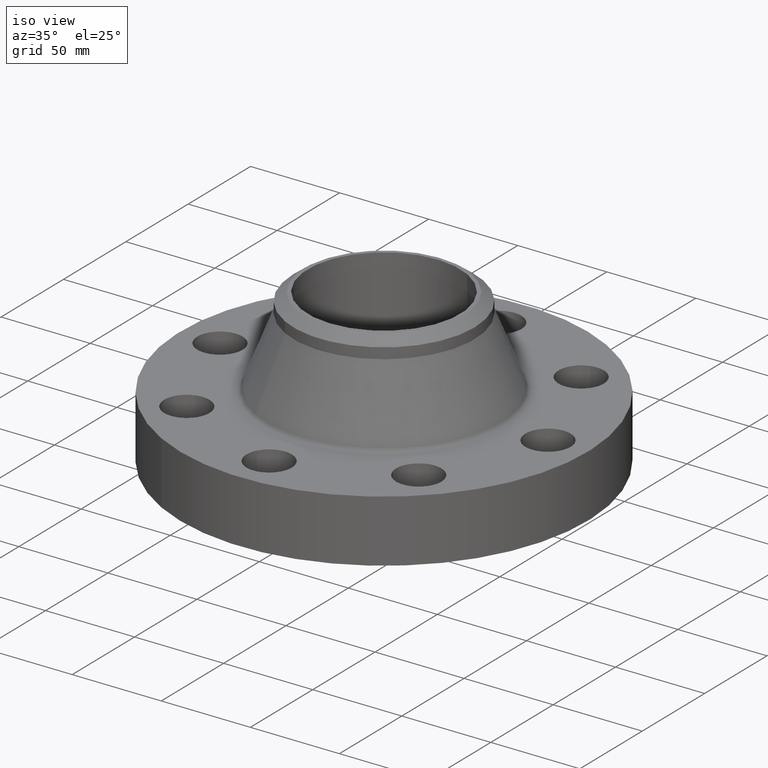
[diagram: clean part render]
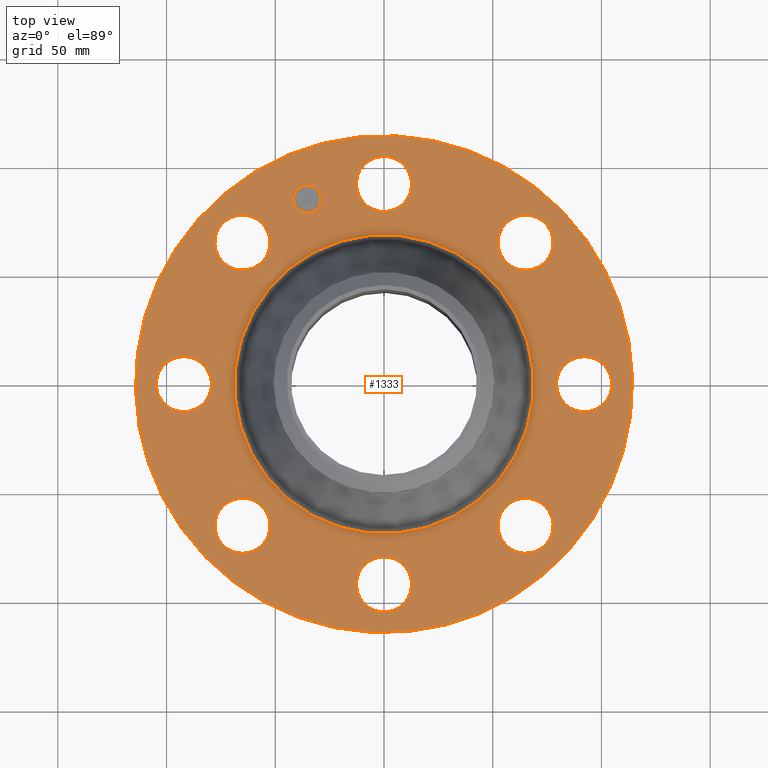
[diagram: tour spotlight — one face highlighted and labeled with its STEP entity id]
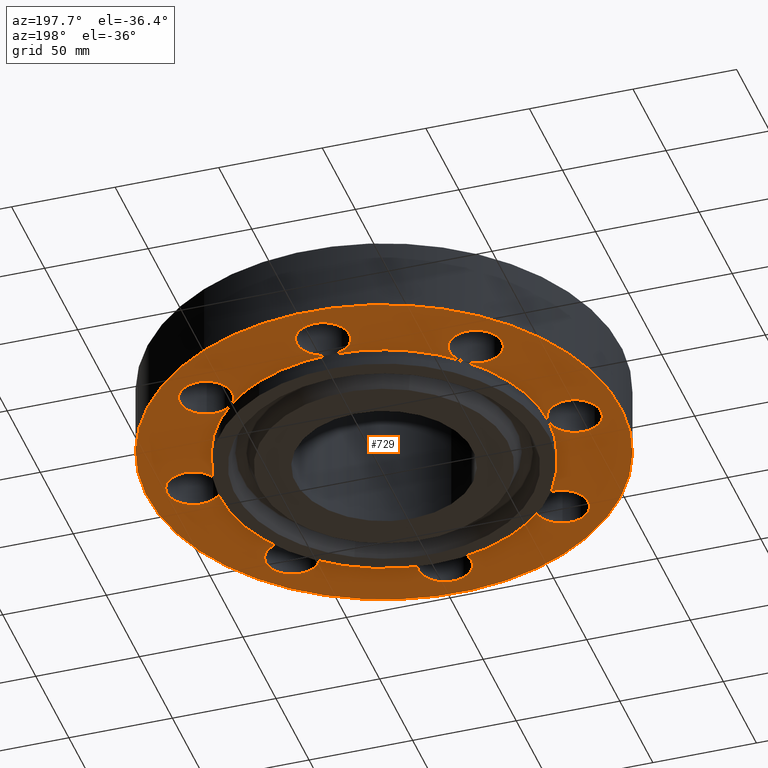
[diagram: tour spotlight — one face highlighted and labeled with its STEP entity id]
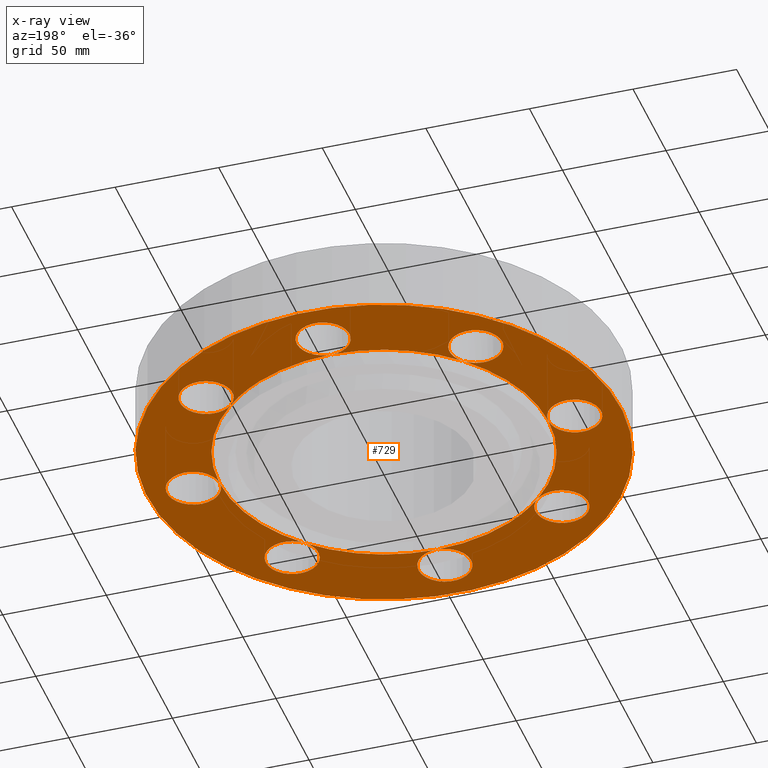
[diagram: x-ray of the same camera — body ghosted, this tour face saturated]
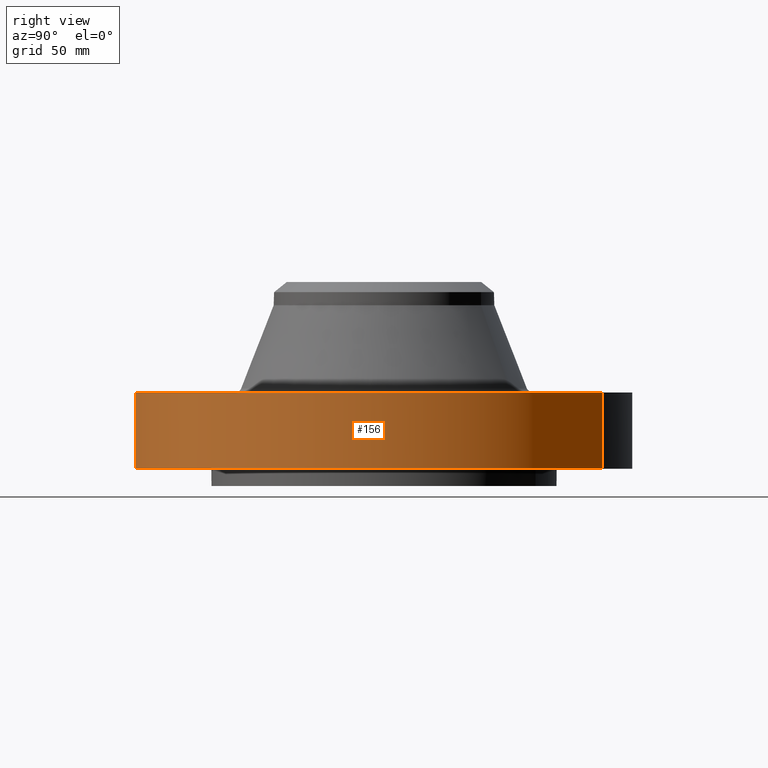
[diagram: tour spotlight — one face highlighted and labeled with its STEP entity id]
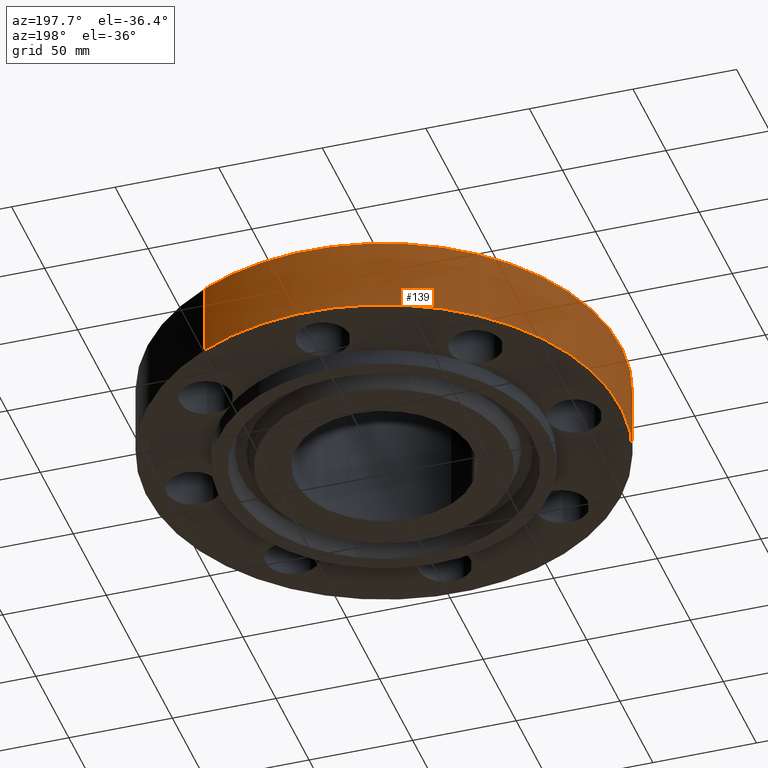
[diagram: tour spotlight — one face highlighted and labeled with its STEP entity id]
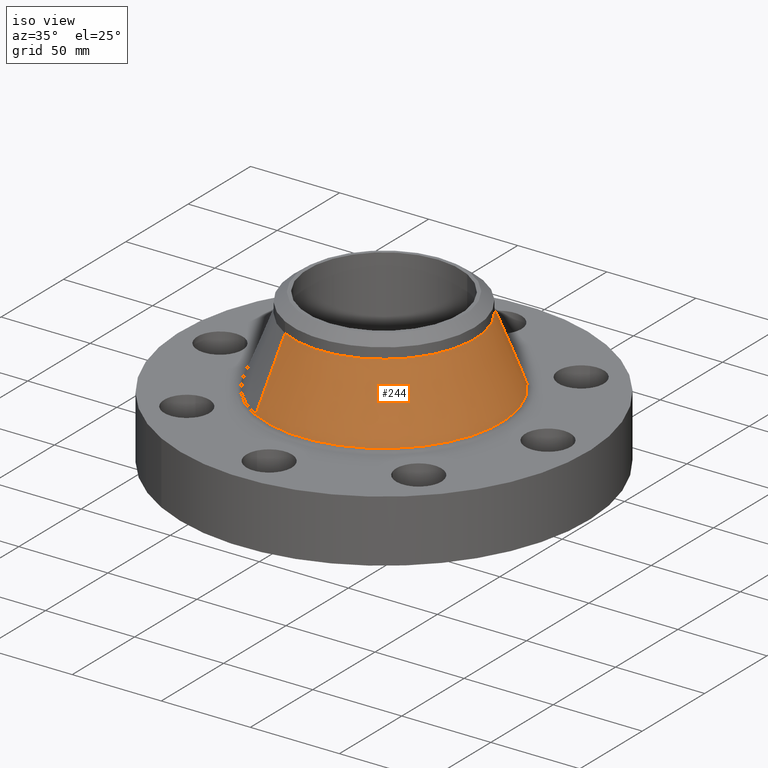
[diagram: tour spotlight — one face highlighted and labeled with its STEP entity id]
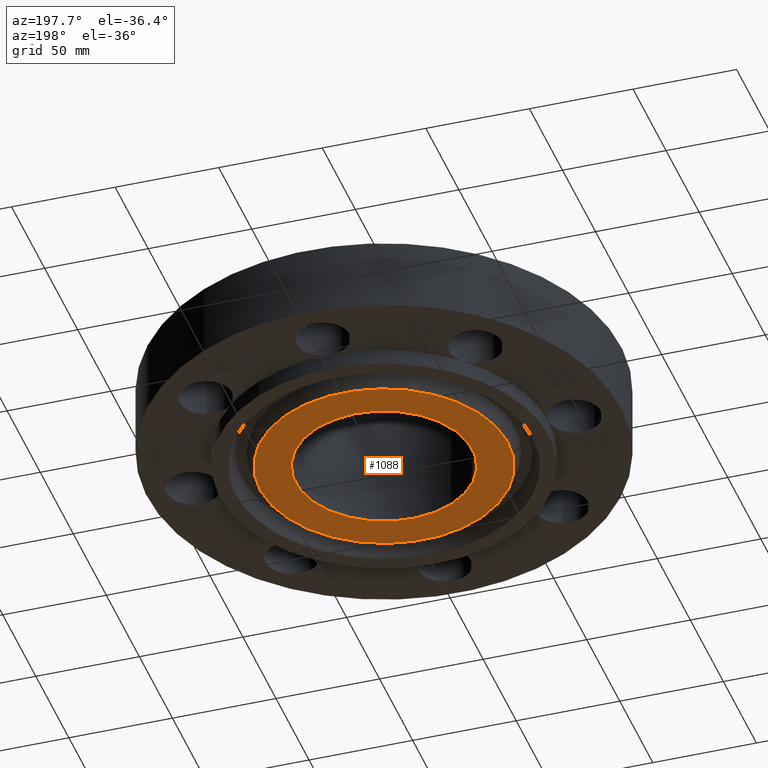
[diagram: tour spotlight — one face highlighted and labeled with its STEP entity id]
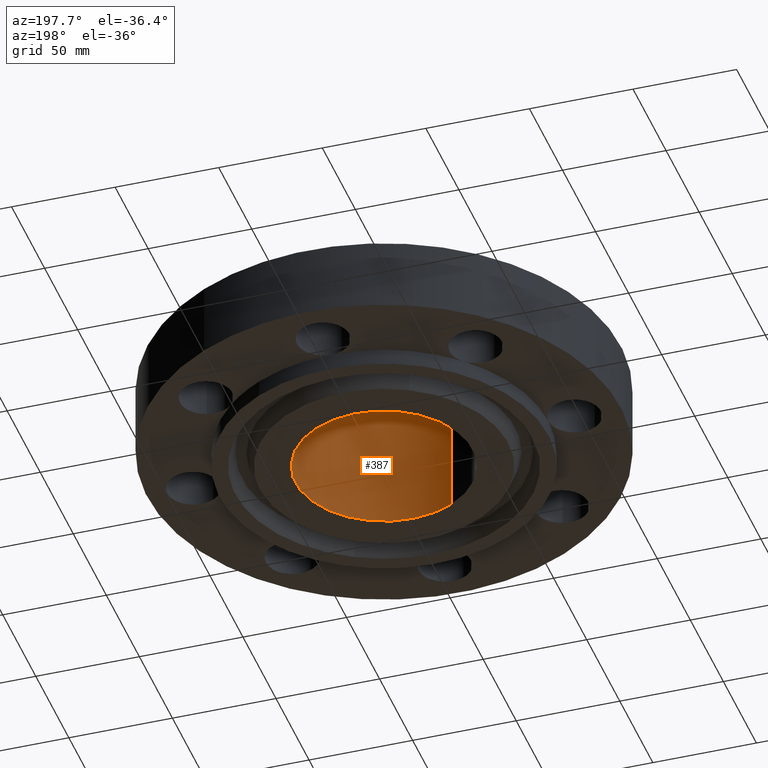
[diagram: tour spotlight — one face highlighted and labeled with its STEP entity id]
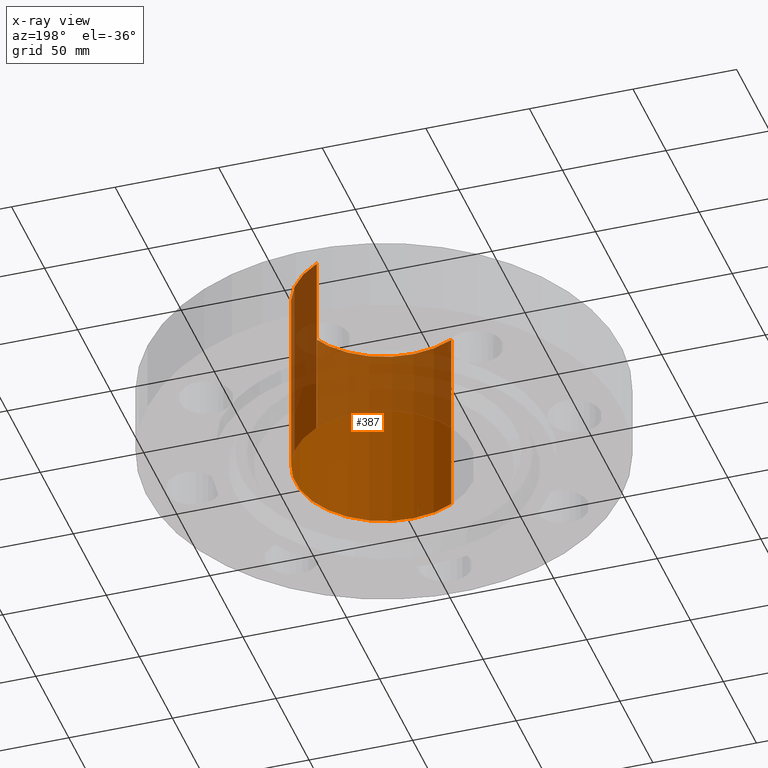
[diagram: x-ray of the same camera — body ghosted, this tour face saturated]
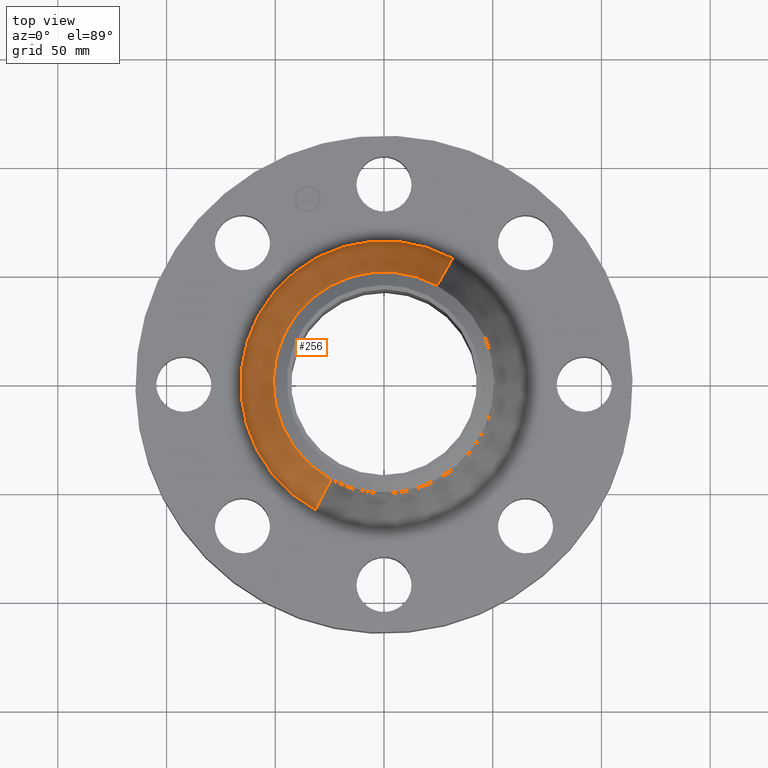
[diagram: tour spotlight — one face highlighted and labeled with its STEP entity id]
A machine part: a face-by-face anatomy tour. The part has 429 B-rep faces; the first image is the clean iso view, then the 8 largest visible faces are spotlighted one at a time (largest first), each with its STEP entity span.

Face 1 — top view, entity #1333. In plain terms, the highlighted planar face has unit normal (0, 0, -1).
Definition (entity closure, byte-faithful):
#65=AXIS2_PLACEMENT_3D('Circle Axis2P3D',#63,#64,$) ;
#89=AXIS2_PLACEMENT_3D('Circle Axis2P3D',#87,#88,$) ;
#123=AXIS2_PLACEMENT_3D('Circle Axis2P3D',#121,#122,$) ;
#147=AXIS2_PLACEMENT_3D('Circle Axis2P3D',#145,#146,$) ;
#164=AXIS2_PLACEMENT_3D('Circle Axis2P3D',#162,#163,$) ;
#199=AXIS2_PLACEMENT_3D('Circle Axis2P3D',#197,#198,$) ;
#751=AXIS2_PLACEMENT_3D('Circle Axis2P3D',#749,#750,$) ;
#763=AXIS2_PLACEMENT_3D('Circle Axis2P3D',#761,#762,$) ;
#795=AXIS2_PLACEMENT_3D('Circle Axis2P3D',#793,#794,$) ;
#807=AXIS2_PLACEMENT_3D('Circle Axis2P3D',#805,#806,$) ;
#839=AXIS2_PLACEMENT_3D('Circle Axis2P3D',#837,#838,$) ;
#851=AXIS2_PLACEMENT_3D('Circle Axis2P3D',#849,#850,$) ;
#883=AXIS2_PLACEMENT_3D('Circle Axis2P3D',#881,#882,$) ;
#895=AXIS2_PLACEMENT_3D('Circle Axis2P3D',#893,#894,$) ;
#927=AXIS2_PLACEMENT_3D('Circle Axis2P3D',#925,#926,$) ;
#939=AXIS2_PLACEMENT_3D('Circle Axis2P3D',#937,#938,$) ;
#971=AXIS2_PLACEMENT_3D('Circle Axis2P3D',#969,#970,$) ;
#983=AXIS2_PLACEMENT_3D('Circle Axis2P3D',#981,#982,$) ;
#1015=AXIS2_PLACEMENT_3D('Circle Axis2P3D',#1013,#1014,$) ;
#1027=AXIS2_PLACEMENT_3D('Circle Axis2P3D',#1025,#1026,$) ;
#1273=AXIS2_PLACEMENT_3D('Plane Axis2P3D',#1270,#1271,#1272) ;
#1317=AXIS2_PLACEMENT_3D('Circle Axis2P3D',#1315,#1316,$) ;
#1326=AXIS2_PLACEMENT_3D('Circle Axis2P3D',#1324,#1325,$) ;
#46=CARTESIAN_POINT('Vertex',(-0.438791280947,3.86471276932,1.38000000001)) ;
#60=CARTESIAN_POINT('Vertex',(0.438791280947,3.38528723071,1.38000000001)) ;
#63=CARTESIAN_POINT('Axis2P3D Location',(0.,3.62500000001,1.38000000001)) ;
#87=CARTESIAN_POINT('Axis2P3D Location',(0.,3.62500000001,1.38000000001)) ;
#118=CARTESIAN_POINT('Vertex',(-2.15741492373,-3.94912152852,1.38000000001)) ;
#121=CARTESIAN_POINT('Axis2P3D Location',(0.,0.,1.38000000001)) ;
#125=CARTESIAN_POINT('Vertex',(2.15741492373,3.94912152852,1.38000000001)) ;
#145=CARTESIAN_POINT('Axis2P3D Location',(0.,0.,1.38000000001)) ;
#162=CARTESIAN_POINT('Axis2P3D Location',(0.,0.,1.38000000001)) ;
#166=CARTESIAN_POINT('Vertex',(1.29760486197,2.37524976747,1.38000000001)) ;
#168=CARTESIAN_POINT('Vertex',(-1.29760486197,-2.37524976747,1.38000000001)) ;
#197=CARTESIAN_POINT('Axis2P3D Location',(0.,0.,1.38000000001)) ;
#739=CARTESIAN_POINT('Vertex',(0.438791280947,-3.86471276932,1.38000000001)) ;
#746=CARTESIAN_POINT('Vertex',(-0.438791280947,-3.38528723071,1.38000000001)) ;
#749=CARTESIAN_POINT('Axis2P3D Location',(4.43934464693E-016,-3.62500000001,1.38000000001)) ;
#761=CARTESIAN_POINT('Axis2P3D Location',(4.43934464693E-016,-3.62500000001,1.38000000001)) ;
#783=CARTESIAN_POINT('Vertex',(-3.04303689681,2.42249231624,1.38000000001)) ;
#790=CARTESIAN_POINT('Vertex',(-2.08348726682,2.70403184738,1.38000000001)) ;
#793=CARTESIAN_POINT('Axis2P3D Location',(-2.56326208181,2.56326208181,1.38000000001)) ;
#805=CARTESIAN_POINT('Axis2P3D Location',(-2.56326208181,2.56326208181,1.38000000001)) ;
#827=CARTESIAN_POINT('Vertex',(3.04303689681,-2.42249231624,1.38000000001)) ;
#834=CARTESIAN_POINT('Vertex',(2.08348726682,-2.70403184738,1.38000000001)) ;
#837=CARTESIAN_POINT('Axis2P3D Location',(2.56326208181,-2.56326208181,1.38000000001)) ;
#849=CARTESIAN_POINT('Axis2P3D Location',(2.56326208181,-2.56326208181,1.38000000001)) ;
#871=CARTESIAN_POINT('Vertex',(2.42249231624,3.04303689681,1.38000000001)) ;
#878=CARTESIAN_POINT('Vertex',(2.70403184738,2.08348726682,1.38000000001)) ;
#881=CARTESIAN_POINT('Axis2P3D Location',(2.56326208181,2.56326208181,1.38000000001)) ;
#893=CARTESIAN_POINT('Axis2P3D Location',(2.56326208181,2.56326208181,1.38000000001)) ;
#915=CARTESIAN_POINT('Vertex',(-3.86471276932,-0.438791280947,1.38000000001)) ;
#922=CARTESIAN_POINT('Vertex',(-3.38528723071,0.438791280947,1.38000000001)) ;
#925=CARTESIAN_POINT('Axis2P3D Location',(-3.62500000001,-1.22538416614E-015,1.38000000001)) ;
#937=CARTESIAN_POINT('Axis2P3D Location',(-3.62500000001,-1.22538416614E-015,1.38000000001)) ;
#959=CARTESIAN_POINT('Vertex',(-2.42249231624,-3.04303689681,1.38000000001)) ;
#966=CARTESIAN_POINT('Vertex',(-2.70403184738,-2.08348726682,1.38000000001)) ;
#969=CARTESIAN_POINT('Axis2P3D Location',(-2.56326208181,-2.56326208181,1.38000000001)) ;
#981=CARTESIAN_POINT('Axis2P3D Location',(-2.56326208181,-2.56326208181,1.38000000001)) ;
#1003=CARTESIAN_POINT('Vertex',(3.86471276932,0.438791280947,1.38000000001)) ;
#1010=CARTESIAN_POINT('Vertex',(3.38528723071,-0.438791280947,1.38000000001)) ;
#1013=CARTESIAN_POINT('Axis2P3D Location',(3.62500000001,2.21967232346E-016,1.38000000001)) ;
#1025=CARTESIAN_POINT('Axis2P3D Location',(3.62500000001,2.21967232346E-016,1.38000000001)) ;
#1270=CARTESIAN_POINT('Axis2P3D Location',(0.,4.50000000002,1.38000000001)) ;
#1315=CARTESIAN_POINT('Axis2P3D Location',(-1.38722744233,3.34906330537,1.38000000001)) ;
#1319=CARTESIAN_POINT('Vertex',(-1.61588762663,3.25434915586,1.38000000001)) ;
#1321=CARTESIAN_POINT('Vertex',(-1.15856725803,3.44377745488,1.38000000001)) ;
#1324=CARTESIAN_POINT('Axis2P3D Location',(-1.38722744233,3.34906330537,1.38000000001)) ;
#64=DIRECTION('Axis2P3D Direction',(0.,-0.,-0.0393700787402)) ;
#88=DIRECTION('Axis2P3D Direction',(0.,-0.,-0.0393700787402)) ;
#122=DIRECTION('Axis2P3D Direction',(0.,0.,-0.0393700787402)) ;
#146=DIRECTION('Axis2P3D Direction',(0.,0.,-0.0393700787402)) ;
#163=DIRECTION('Axis2P3D Direction',(0.,0.,-0.0393700787402)) ;
#198=DIRECTION('Axis2P3D Direction',(0.,0.,-0.0393700787402)) ;
#750=DIRECTION('Axis2P3D Direction',(-0.,0.,-0.0393700787402)) ;
#762=DIRECTION('Axis2P3D Direction',(-0.,0.,-0.0393700787402)) ;
#794=DIRECTION('Axis2P3D Direction',(0.,0.,-0.0393700787402)) ;
#806=DIRECTION('Axis2P3D Direction',(0.,0.,-0.0393700787402)) ;
#838=DIRECTION('Axis2P3D Direction',(-0.,0.,-0.0393700787402)) ;
#850=DIRECTION('Axis2P3D Direction',(-0.,0.,-0.0393700787402)) ;
#882=DIRECTION('Axis2P3D Direction',(0.,-0.,-0.0393700787402)) ;
#894=DIRECTION('Axis2P3D Direction',(0.,-0.,-0.0393700787402)) ;
#926=DIRECTION('Axis2P3D Direction',(0.,0.,-0.0393700787402)) ;
#938=DIRECTION('Axis2P3D Direction',(0.,0.,-0.0393700787402)) ;
#970=DIRECTION('Axis2P3D Direction',(0.,0.,-0.0393700787402)) ;
#982=DIRECTION('Axis2P3D Direction',(0.,0.,-0.0393700787402)) ;
#1014=DIRECTION('Axis2P3D Direction',(0.,-0.,-0.0393700787402)) ;
#1026=DIRECTION('Axis2P3D Direction',(0.,-0.,-0.0393700787402)) ;
#1271=DIRECTION('Axis2P3D Direction',(0.,0.,-0.0393700787402)) ;
#1272=DIRECTION('Axis2P3D XDirection',(0.0393700787402,0.,0.)) ;
#1316=DIRECTION('Axis2P3D Direction',(0.,0.,-0.0393700787402)) ;
#1325=DIRECTION('Axis2P3D Direction',(0.,0.,-0.0393700787402)) ;
#1276=ORIENTED_EDGE('',*,*,#149,.F.) ;
#1277=ORIENTED_EDGE('',*,*,#127,.F.) ;
#1280=ORIENTED_EDGE('',*,*,#67,.T.) ;
#1281=ORIENTED_EDGE('',*,*,#91,.T.) ;
#1284=ORIENTED_EDGE('',*,*,#201,.T.) ;
#1285=ORIENTED_EDGE('',*,*,#170,.T.) ;
#1288=ORIENTED_EDGE('',*,*,#897,.T.) ;
#1289=ORIENTED_EDGE('',*,*,#885,.T.) ;
#1292=ORIENTED_EDGE('',*,*,#1029,.T.) ;
#1293=ORIENTED_EDGE('',*,*,#1017,.T.) ;
#1296=ORIENTED_EDGE('',*,*,#853,.T.) ;
#1297=ORIENTED_EDGE('',*,*,#841,.T.) ;
#1300=ORIENTED_EDGE('',*,*,#765,.T.) ;
#1301=ORIENTED_EDGE('',*,*,#753,.T.) ;
#1304=ORIENTED_EDGE('',*,*,#985,.T.) ;
#1305=ORIENTED_EDGE('',*,*,#973,.T.) ;
#1308=ORIENTED_EDGE('',*,*,#941,.T.) ;
#1309=ORIENTED_EDGE('',*,*,#929,.T.) ;
#1312=ORIENTED_EDGE('',*,*,#809,.T.) ;
#1313=ORIENTED_EDGE('',*,*,#797,.T.) ;
#1330=ORIENTED_EDGE('',*,*,#1323,.T.) ;
#1331=ORIENTED_EDGE('',*,*,#1328,.T.) ;
#1282=FACE_BOUND('',#1279,.T.) ;
#1286=FACE_BOUND('',#1283,.T.) ;
#1290=FACE_BOUND('',#1287,.T.) ;
#1294=FACE_BOUND('',#1291,.T.) ;
#1298=FACE_BOUND('',#1295,.T.) ;
#1302=FACE_BOUND('',#1299,.T.) ;
#1306=FACE_BOUND('',#1303,.T.) ;
#1310=FACE_BOUND('',#1307,.T.) ;
#1314=FACE_BOUND('',#1311,.T.) ;
#1332=FACE_BOUND('',#1329,.T.) ;
#1333=ADVANCED_FACE('PartBody',(#1278,#1282,#1286,#1290,#1294,#1298,#1302,#1306,#1310,#1314,#1332),#1274,.F.) ;
#66=CIRCLE('generated circle',#65,0.500000000002) ;
#90=CIRCLE('generated circle',#89,0.500000000002) ;
#124=CIRCLE('generated circle',#123,4.50000000002) ;
#148=CIRCLE('generated circle',#147,4.50000000002) ;
#165=CIRCLE('generated circle',#164,2.70658268591) ;
#200=CIRCLE('generated circle',#199,2.70658268591) ;
#752=CIRCLE('generated circle',#751,0.500000000002) ;
#764=CIRCLE('generated circle',#763,0.500000000002) ;
#796=CIRCLE('generated circle',#795,0.500000000002) ;
#808=CIRCLE('generated circle',#807,0.500000000002) ;
#840=CIRCLE('generated circle',#839,0.500000000002) ;
#852=CIRCLE('generated circle',#851,0.500000000002) ;
#884=CIRCLE('generated circle',#883,0.500000000002) ;
#896=CIRCLE('generated circle',#895,0.500000000002) ;
#928=CIRCLE('generated circle',#927,0.500000000002) ;
#940=CIRCLE('generated circle',#939,0.500000000002) ;
#972=CIRCLE('generated circle',#971,0.500000000002) ;
#984=CIRCLE('generated circle',#983,0.500000000002) ;
#1016=CIRCLE('generated circle',#1015,0.500000000002) ;
#1028=CIRCLE('generated circle',#1027,0.500000000002) ;
#1318=CIRCLE('generated circle',#1317,0.247500000001) ;
#1327=CIRCLE('generated circle',#1326,0.247500000001) ;
#67=EDGE_CURVE('',#47,#61,#66,.T.) ;
#91=EDGE_CURVE('',#61,#47,#90,.T.) ;
#127=EDGE_CURVE('',#119,#126,#124,.T.) ;
#149=EDGE_CURVE('',#126,#119,#148,.T.) ;
#170=EDGE_CURVE('',#167,#169,#165,.T.) ;
#201=EDGE_CURVE('',#169,#167,#200,.T.) ;
#753=EDGE_CURVE('',#740,#747,#752,.T.) ;
#765=EDGE_CURVE('',#747,#740,#764,.T.) ;
#797=EDGE_CURVE('',#784,#791,#796,.T.) ;
#809=EDGE_CURVE('',#791,#784,#808,.T.) ;
#841=EDGE_CURVE('',#828,#835,#840,.T.) ;
#853=EDGE_CURVE('',#835,#828,#852,.T.) ;
#885=EDGE_CURVE('',#872,#879,#884,.T.) ;
#897=EDGE_CURVE('',#879,#872,#896,.T.) ;
#929=EDGE_CURVE('',#916,#923,#928,.T.) ;
#941=EDGE_CURVE('',#923,#916,#940,.T.) ;
#973=EDGE_CURVE('',#960,#967,#972,.T.) ;
#985=EDGE_CURVE('',#967,#960,#984,.T.) ;
#1017=EDGE_CURVE('',#1004,#1011,#1016,.T.) ;
#1029=EDGE_CURVE('',#1011,#1004,#1028,.T.) ;
#1323=EDGE_CURVE('',#1320,#1322,#1318,.T.) ;
#1328=EDGE_CURVE('',#1322,#1320,#1327,.T.) ;
#1275=EDGE_LOOP('',(#1276,#1277)) ;
#1279=EDGE_LOOP('',(#1280,#1281)) ;
#1283=EDGE_LOOP('',(#1284,#1285)) ;
#1287=EDGE_LOOP('',(#1288,#1289)) ;
#1291=EDGE_LOOP('',(#1292,#1293)) ;
#1295=EDGE_LOOP('',(#1296,#1297)) ;
#1299=EDGE_LOOP('',(#1300,#1301)) ;
#1303=EDGE_LOOP('',(#1304,#1305)) ;
#1307=EDGE_LOOP('',(#1308,#1309)) ;
#1311=EDGE_LOOP('',(#1312,#1313)) ;
#1329=EDGE_LOOP('',(#1330,#1331)) ;
#1278=FACE_OUTER_BOUND('',#1275,.T.) ;
#1274=PLANE('',#1273) ;
#47=VERTEX_POINT('',#46) ;
#61=VERTEX_POINT('',#60) ;
#119=VERTEX_POINT('',#118) ;
#126=VERTEX_POINT('',#125) ;
#167=VERTEX_POINT('',#166) ;
#169=VERTEX_POINT('',#168) ;
#740=VERTEX_POINT('',#739) ;
#747=VERTEX_POINT('',#746) ;
#784=VERTEX_POINT('',#783) ;
#791=VERTEX_POINT('',#790) ;
#828=VERTEX_POINT('',#827) ;
#835=VERTEX_POINT('',#834) ;
#872=VERTEX_POINT('',#871) ;
#879=VERTEX_POINT('',#878) ;
#916=VERTEX_POINT('',#915) ;
#923=VERTEX_POINT('',#922) ;
#960=VERTEX_POINT('',#959) ;
#967=VERTEX_POINT('',#966) ;
#1004=VERTEX_POINT('',#1003) ;
#1011=VERTEX_POINT('',#1010) ;
#1320=VERTEX_POINT('',#1319) ;
#1322=VERTEX_POINT('',#1321) ;

Face 2 — auxiliary view, entity #729. An x-ray twin of the same camera follows (body ghosted, this face saturated) — the face is partly hidden behind the body. In plain terms, the highlighted planar face has unit normal (0, 0, -1).
Definition (entity closure, byte-faithful):
#51=AXIS2_PLACEMENT_3D('Circle Axis2P3D',#49,#50,$) ;
#77=AXIS2_PLACEMENT_3D('Circle Axis2P3D',#75,#76,$) ;
#84=AXIS2_PLACEMENT_3D('Circle Axis2P3D',#82,#83,$) ;
#107=AXIS2_PLACEMENT_3D('Circle Axis2P3D',#105,#106,$) ;
#142=AXIS2_PLACEMENT_3D('Circle Axis2P3D',#140,#141,$) ;
#455=AXIS2_PLACEMENT_3D('Circle Axis2P3D',#453,#454,$) ;
#462=AXIS2_PLACEMENT_3D('Circle Axis2P3D',#460,#461,$) ;
#469=AXIS2_PLACEMENT_3D('Circle Axis2P3D',#467,#468,$) ;
#476=AXIS2_PLACEMENT_3D('Circle Axis2P3D',#474,#475,$) ;
#481=AXIS2_PLACEMENT_3D('Circle Axis2P3D',#479,#480,$) ;
#509=AXIS2_PLACEMENT_3D('Circle Axis2P3D',#507,#508,$) ;
#516=AXIS2_PLACEMENT_3D('Circle Axis2P3D',#514,#515,$) ;
#523=AXIS2_PLACEMENT_3D('Circle Axis2P3D',#521,#522,$) ;
#530=AXIS2_PLACEMENT_3D('Circle Axis2P3D',#528,#529,$) ;
#537=AXIS2_PLACEMENT_3D('Circle Axis2P3D',#535,#536,$) ;
#554=AXIS2_PLACEMENT_3D('Plane Axis2P3D',#551,#552,#553) ;
#562=AXIS2_PLACEMENT_3D('Circle Axis2P3D',#560,#561,$) ;
#569=AXIS2_PLACEMENT_3D('Circle Axis2P3D',#567,#568,$) ;
#576=AXIS2_PLACEMENT_3D('Circle Axis2P3D',#574,#575,$) ;
#581=AXIS2_PLACEMENT_3D('Circle Axis2P3D',#579,#580,$) ;
#588=AXIS2_PLACEMENT_3D('Circle Axis2P3D',#586,#587,$) ;
#595=AXIS2_PLACEMENT_3D('Circle Axis2P3D',#593,#594,$) ;
#600=AXIS2_PLACEMENT_3D('Circle Axis2P3D',#598,#599,$) ;
#607=AXIS2_PLACEMENT_3D('Circle Axis2P3D',#605,#606,$) ;
#614=AXIS2_PLACEMENT_3D('Circle Axis2P3D',#612,#613,$) ;
#619=AXIS2_PLACEMENT_3D('Circle Axis2P3D',#617,#618,$) ;
#626=AXIS2_PLACEMENT_3D('Circle Axis2P3D',#624,#625,$) ;
#633=AXIS2_PLACEMENT_3D('Circle Axis2P3D',#631,#632,$) ;
#638=AXIS2_PLACEMENT_3D('Circle Axis2P3D',#636,#637,$) ;
#645=AXIS2_PLACEMENT_3D('Circle Axis2P3D',#643,#644,$) ;
#652=AXIS2_PLACEMENT_3D('Circle Axis2P3D',#650,#651,$) ;
#657=AXIS2_PLACEMENT_3D('Circle Axis2P3D',#655,#656,$) ;
#664=AXIS2_PLACEMENT_3D('Circle Axis2P3D',#662,#663,$) ;
#671=AXIS2_PLACEMENT_3D('Circle Axis2P3D',#669,#670,$) ;
#676=AXIS2_PLACEMENT_3D('Circle Axis2P3D',#674,#675,$) ;
#683=AXIS2_PLACEMENT_3D('Circle Axis2P3D',#681,#682,$) ;
#690=AXIS2_PLACEMENT_3D('Circle Axis2P3D',#688,#689,$) ;
#44=CARTESIAN_POINT('Vertex',(-0.438791280947,3.86471276932,0.)) ;
#49=CARTESIAN_POINT('Axis2P3D Location',(0.,3.62500000001,0.)) ;
#53=CARTESIAN_POINT('Vertex',(0.438791280947,3.38528723071,0.)) ;
#75=CARTESIAN_POINT('Axis2P3D Location',(0.,3.62500000001,0.)) ;
#79=CARTESIAN_POINT('Vertex',(-1.33945743657E-015,3.12500000001,2.79741234551E-016)) ;
#82=CARTESIAN_POINT('Axis2P3D Location',(0.,3.62500000001,0.)) ;
#105=CARTESIAN_POINT('Axis2P3D Location',(0.,0.,5.59482469102E-016)) ;
#109=CARTESIAN_POINT('Vertex',(-2.15741492373,-3.94912152852,5.59482469102E-016)) ;
#111=CARTESIAN_POINT('Vertex',(2.15741492373,3.94912152852,5.59482469102E-016)) ;
#140=CARTESIAN_POINT('Axis2P3D Location',(0.,0.,5.59482469102E-016)) ;
#450=CARTESIAN_POINT('Vertex',(-1.49820480814,-2.74244550592,0.)) ;
#453=CARTESIAN_POINT('Axis2P3D Location',(0.,0.,2.79741234551E-016)) ;
#457=CARTESIAN_POINT('Vertex',(-2.20970869122,-2.20970869122,0.)) ;
#460=CARTESIAN_POINT('Axis2P3D Location',(0.,0.,2.79741234551E-016)) ;
#464=CARTESIAN_POINT('Vertex',(-3.12500000001,-1.67844740731E-015,0.)) ;
#467=CARTESIAN_POINT('Axis2P3D Location',(0.,0.,2.79741234551E-016)) ;
#471=CARTESIAN_POINT('Vertex',(-2.20970869122,2.20970869122,0.)) ;
#474=CARTESIAN_POINT('Axis2P3D Location',(0.,0.,2.79741234551E-016)) ;
#479=CARTESIAN_POINT('Axis2P3D Location',(0.,0.,2.79741234551E-016)) ;
#483=CARTESIAN_POINT('Vertex',(1.49820480814,2.74244550592,0.)) ;
#507=CARTESIAN_POINT('Axis2P3D Location',(0.,0.,2.79741234551E-016)) ;
#511=CARTESIAN_POINT('Vertex',(2.20970869122,2.20970869122,0.)) ;
#514=CARTESIAN_POINT('Axis2P3D Location',(0.,0.,2.79741234551E-016)) ;
#518=CARTESIAN_POINT('Vertex',(3.12500000001,0.,0.)) ;
#521=CARTESIAN_POINT('Axis2P3D Location',(0.,0.,2.79741234551E-016)) ;
#525=CARTESIAN_POINT('Vertex',(2.20970869122,-2.20970869122,0.)) ;
#528=CARTESIAN_POINT('Axis2P3D Location',(0.,0.,2.79741234551E-016)) ;
#532=CARTESIAN_POINT('Vertex',(8.29897616581E-017,-3.12500000001,0.)) ;
#535=CARTESIAN_POINT('Axis2P3D Location',(0.,0.,2.79741234551E-016)) ;
#551=CARTESIAN_POINT('Axis2P3D Location',(0.,3.12500000001,0.)) ;
#560=CARTESIAN_POINT('Axis2P3D Location',(3.62500000001,0.,0.)) ;
#564=CARTESIAN_POINT('Vertex',(3.38528723071,-0.438791280947,0.)) ;
#567=CARTESIAN_POINT('Axis2P3D Location',(3.62500000001,5.59482469102E-016,0.)) ;
#571=CARTESIAN_POINT('Vertex',(3.86471276932,0.438791280947,0.)) ;
#574=CARTESIAN_POINT('Axis2P3D Location',(3.62500000001,0.,0.)) ;
#579=CARTESIAN_POINT('Axis2P3D Location',(2.56326208181,2.56326208181,0.)) ;
#583=CARTESIAN_POINT('Vertex',(2.70403184738,2.08348726682,0.)) ;
#586=CARTESIAN_POINT('Axis2P3D Location',(2.56326208181,2.56326208181,0.)) ;
#590=CARTESIAN_POINT('Vertex',(2.42249231624,3.04303689681,0.)) ;
#593=CARTESIAN_POINT('Axis2P3D Location',(2.56326208181,2.56326208181,0.)) ;
#598=CARTESIAN_POINT('Axis2P3D Location',(-2.56326208181,2.56326208181,0.)) ;
#602=CARTESIAN_POINT('Vertex',(-2.08348726682,2.70403184738,0.)) ;
#605=CARTESIAN_POINT('Axis2P3D Location',(-2.56326208181,2.56326208181,0.)) ;
#609=CARTESIAN_POINT('Vertex',(-3.04303689681,2.42249231624,0.)) ;
#612=CARTESIAN_POINT('Axis2P3D Location',(-2.56326208181,2.56326208181,0.)) ;
#617=CARTESIAN_POINT('Axis2P3D Location',(-3.62500000001,-1.67844740731E-015,0.)) ;
#621=CARTESIAN_POINT('Vertex',(-3.38528723071,0.438791280947,0.)) ;
#624=CARTESIAN_POINT('Axis2P3D Location',(-3.62500000001,-1.1189649382E-015,0.)) ;
#628=CARTESIAN_POINT('Vertex',(-3.86471276932,-0.438791280947,0.)) ;
#631=CARTESIAN_POINT('Axis2P3D Location',(-3.62500000001,-1.67844740731E-015,0.)) ;
#636=CARTESIAN_POINT('Axis2P3D Location',(-2.56326208181,-2.56326208181,0.)) ;
#640=CARTESIAN_POINT('Vertex',(-2.70403184738,-2.08348726682,0.)) ;
#643=CARTESIAN_POINT('Axis2P3D Location',(-2.56326208181,-2.56326208181,0.)) ;
#647=CARTESIAN_POINT('Vertex',(-2.42249231624,-3.04303689681,0.)) ;
#650=CARTESIAN_POINT('Axis2P3D Location',(-2.56326208181,-2.56326208181,0.)) ;
#655=CARTESIAN_POINT('Axis2P3D Location',(1.74838271595E-016,-3.62500000001,0.)) ;
#659=CARTESIAN_POINT('Vertex',(-0.438791280947,-3.38528723071,0.)) ;
#662=CARTESIAN_POINT('Axis2P3D Location',(2.79741234551E-016,-3.62500000001,0.)) ;
#666=CARTESIAN_POINT('Vertex',(0.438791280947,-3.86471276932,0.)) ;
#669=CARTESIAN_POINT('Axis2P3D Location',(1.74838271595E-016,-3.62500000001,0.)) ;
#674=CARTESIAN_POINT('Axis2P3D Location',(2.56326208181,-2.56326208181,0.)) ;
#678=CARTESIAN_POINT('Vertex',(2.08348726682,-2.70403184738,0.)) ;
#681=CARTESIAN_POINT('Axis2P3D Location',(2.56326208181,-2.56326208181,0.)) ;
#685=CARTESIAN_POINT('Vertex',(3.04303689681,-2.42249231624,0.)) ;
#688=CARTESIAN_POINT('Axis2P3D Location',(2.56326208181,-2.56326208181,0.)) ;
#50=DIRECTION('Axis2P3D Direction',(0.,-0.,-0.0393700787402)) ;
#76=DIRECTION('Axis2P3D Direction',(0.,-0.,-0.0393700787402)) ;
#83=DIRECTION('Axis2P3D Direction',(0.,-0.,-0.0393700787402)) ;
#106=DIRECTION('Axis2P3D Direction',(0.,0.,-0.0393700787402)) ;
#141=DIRECTION('Axis2P3D Direction',(0.,0.,-0.0393700787402)) ;
#454=DIRECTION('Axis2P3D Direction',(0.,0.,-0.0393700787402)) ;
#461=DIRECTION('Axis2P3D Direction',(0.,0.,-0.0393700787402)) ;
#468=DIRECTION('Axis2P3D Direction',(0.,0.,-0.0393700787402)) ;
#475=DIRECTION('Axis2P3D Direction',(0.,0.,-0.0393700787402)) ;
#480=DIRECTION('Axis2P3D Direction',(0.,0.,-0.0393700787402)) ;
#508=DIRECTION('Axis2P3D Direction',(0.,0.,-0.0393700787402)) ;
#515=DIRECTION('Axis2P3D Direction',(0.,0.,-0.0393700787402)) ;
#522=DIRECTION('Axis2P3D Direction',(0.,0.,-0.0393700787402)) ;
#529=DIRECTION('Axis2P3D Direction',(0.,0.,-0.0393700787402)) ;
#536=DIRECTION('Axis2P3D Direction',(0.,0.,-0.0393700787402)) ;
#552=DIRECTION('Axis2P3D Direction',(0.,0.,-0.0393700787402)) ;
#553=DIRECTION('Axis2P3D XDirection',(0.0393700787402,0.,0.)) ;
#561=DIRECTION('Axis2P3D Direction',(0.,0.,-0.0393700787402)) ;
#568=DIRECTION('Axis2P3D Direction',(0.,0.,-0.0393700787402)) ;
#575=DIRECTION('Axis2P3D Direction',(0.,0.,-0.0393700787402)) ;
#580=DIRECTION('Axis2P3D Direction',(0.,0.,-0.0393700787402)) ;
#587=DIRECTION('Axis2P3D Direction',(0.,0.,-0.0393700787402)) ;
#594=DIRECTION('Axis2P3D Direction',(0.,0.,-0.0393700787402)) ;
#599=DIRECTION('Axis2P3D Direction',(0.,0.,-0.0393700787402)) ;
#606=DIRECTION('Axis2P3D Direction',(0.,0.,-0.0393700787402)) ;
#613=DIRECTION('Axis2P3D Direction',(0.,0.,-0.0393700787402)) ;
#618=DIRECTION('Axis2P3D Direction',(0.,0.,-0.0393700787402)) ;
#625=DIRECTION('Axis2P3D Direction',(0.,0.,-0.0393700787402)) ;
#632=DIRECTION('Axis2P3D Direction',(0.,0.,-0.0393700787402)) ;
#637=DIRECTION('Axis2P3D Direction',(0.,0.,-0.0393700787402)) ;
#644=DIRECTION('Axis2P3D Direction',(0.,0.,-0.0393700787402)) ;
#651=DIRECTION('Axis2P3D Direction',(0.,0.,-0.0393700787402)) ;
#656=DIRECTION('Axis2P3D Direction',(0.,0.,-0.0393700787402)) ;
#663=DIRECTION('Axis2P3D Direction',(0.,0.,-0.0393700787402)) ;
#670=DIRECTION('Axis2P3D Direction',(0.,0.,-0.0393700787402)) ;
#675=DIRECTION('Axis2P3D Direction',(0.,0.,-0.0393700787402)) ;
#682=DIRECTION('Axis2P3D Direction',(0.,0.,-0.0393700787402)) ;
#689=DIRECTION('Axis2P3D Direction',(0.,0.,-0.0393700787402)) ;
#557=ORIENTED_EDGE('',*,*,#113,.T.) ;
#558=ORIENTED_EDGE('',*,*,#144,.T.) ;
#694=ORIENTED_EDGE('',*,*,#566,.F.) ;
#695=ORIENTED_EDGE('',*,*,#573,.F.) ;
#696=ORIENTED_EDGE('',*,*,#578,.F.) ;
#697=ORIENTED_EDGE('',*,*,#520,.F.) ;
#698=ORIENTED_EDGE('',*,*,#585,.F.) ;
#699=ORIENTED_EDGE('',*,*,#592,.F.) ;
#700=ORIENTED_EDGE('',*,*,#597,.F.) ;
#701=ORIENTED_EDGE('',*,*,#513,.F.) ;
#702=ORIENTED_EDGE('',*,*,#485,.F.) ;
#703=ORIENTED_EDGE('',*,*,#81,.F.) ;
#704=ORIENTED_EDGE('',*,*,#55,.F.) ;
#705=ORIENTED_EDGE('',*,*,#86,.F.) ;
#706=ORIENTED_EDGE('',*,*,#478,.F.) ;
#707=ORIENTED_EDGE('',*,*,#604,.F.) ;
#708=ORIENTED_EDGE('',*,*,#611,.F.) ;
#709=ORIENTED_EDGE('',*,*,#616,.F.) ;
#710=ORIENTED_EDGE('',*,*,#473,.F.) ;
#711=ORIENTED_EDGE('',*,*,#623,.F.) ;
#712=ORIENTED_EDGE('',*,*,#630,.F.) ;
#713=ORIENTED_EDGE('',*,*,#635,.F.) ;
#714=ORIENTED_EDGE('',*,*,#466,.F.) ;
#715=ORIENTED_EDGE('',*,*,#642,.F.) ;
#716=ORIENTED_EDGE('',*,*,#649,.F.) ;
#717=ORIENTED_EDGE('',*,*,#654,.F.) ;
#718=ORIENTED_EDGE('',*,*,#459,.F.) ;
#719=ORIENTED_EDGE('',*,*,#539,.F.) ;
#720=ORIENTED_EDGE('',*,*,#661,.F.) ;
#721=ORIENTED_EDGE('',*,*,#668,.F.) ;
#722=ORIENTED_EDGE('',*,*,#673,.F.) ;
#723=ORIENTED_EDGE('',*,*,#534,.F.) ;
#724=ORIENTED_EDGE('',*,*,#680,.F.) ;
#725=ORIENTED_EDGE('',*,*,#687,.F.) ;
#726=ORIENTED_EDGE('',*,*,#692,.F.) ;
#727=ORIENTED_EDGE('',*,*,#527,.F.) ;
#728=FACE_BOUND('',#693,.T.) ;
#729=ADVANCED_FACE('PartBody',(#559,#728),#555,.T.) ;
#52=CIRCLE('generated circle',#51,0.500000000002) ;
#78=CIRCLE('generated circle',#77,0.500000000002) ;
#85=CIRCLE('generated circle',#84,0.500000000002) ;
#108=CIRCLE('generated circle',#107,4.50000000002) ;
#143=CIRCLE('generated circle',#142,4.50000000002) ;
#456=CIRCLE('generated circle',#455,3.12500000001) ;
#463=CIRCLE('generated circle',#462,3.12500000001) ;
#470=CIRCLE('generated circle',#469,3.12500000001) ;
#477=CIRCLE('generated circle',#476,3.12500000001) ;
#482=CIRCLE('generated circle',#481,3.12500000001) ;
#510=CIRCLE('generated circle',#509,3.12500000001) ;
#517=CIRCLE('generated circle',#516,3.12500000001) ;
#524=CIRCLE('generated circle',#523,3.12500000001) ;
#531=CIRCLE('generated circle',#530,3.12500000001) ;
#538=CIRCLE('generated circle',#537,3.12500000001) ;
#563=CIRCLE('generated circle',#562,0.500000000002) ;
#570=CIRCLE('generated circle',#569,0.500000000002) ;
#577=CIRCLE('generated circle',#576,0.500000000002) ;
#582=CIRCLE('generated circle',#581,0.500000000002) ;
#589=CIRCLE('generated circle',#588,0.500000000002) ;
#596=CIRCLE('generated circle',#595,0.500000000002) ;
#601=CIRCLE('generated circle',#600,0.500000000002) ;
#608=CIRCLE('generated circle',#607,0.500000000002) ;
#615=CIRCLE('generated circle',#614,0.500000000002) ;
#620=CIRCLE('generated circle',#619,0.500000000002) ;
#627=CIRCLE('generated circle',#626,0.500000000002) ;
#634=CIRCLE('generated circle',#633,0.500000000002) ;
#639=CIRCLE('generated circle',#638,0.500000000002) ;
#646=CIRCLE('generated circle',#645,0.500000000002) ;
#653=CIRCLE('generated circle',#652,0.500000000002) ;
#658=CIRCLE('generated circle',#657,0.500000000002) ;
#665=CIRCLE('generated circle',#664,0.500000000002) ;
#672=CIRCLE('generated circle',#671,0.500000000002) ;
#677=CIRCLE('generated circle',#676,0.500000000002) ;
#684=CIRCLE('generated circle',#683,0.500000000002) ;
#691=CIRCLE('generated circle',#690,0.500000000002) ;
#55=EDGE_CURVE('',#45,#54,#52,.T.) ;
#81=EDGE_CURVE('',#54,#80,#78,.T.) ;
#86=EDGE_CURVE('',#80,#45,#85,.T.) ;
#113=EDGE_CURVE('',#110,#112,#108,.T.) ;
#144=EDGE_CURVE('',#112,#110,#143,.T.) ;
#459=EDGE_CURVE('',#451,#458,#456,.T.) ;
#466=EDGE_CURVE('',#458,#465,#463,.T.) ;
#473=EDGE_CURVE('',#465,#472,#470,.T.) ;
#478=EDGE_CURVE('',#472,#80,#477,.T.) ;
#485=EDGE_CURVE('',#80,#484,#482,.T.) ;
#513=EDGE_CURVE('',#484,#512,#510,.T.) ;
#520=EDGE_CURVE('',#512,#519,#517,.T.) ;
#527=EDGE_CURVE('',#519,#526,#524,.T.) ;
#534=EDGE_CURVE('',#526,#533,#531,.T.) ;
#539=EDGE_CURVE('',#533,#451,#538,.T.) ;
#566=EDGE_CURVE('',#565,#519,#563,.T.) ;
#573=EDGE_CURVE('',#572,#565,#570,.T.) ;
#578=EDGE_CURVE('',#519,#572,#577,.T.) ;
#585=EDGE_CURVE('',#584,#512,#582,.T.) ;
#592=EDGE_CURVE('',#591,#584,#589,.T.) ;
#597=EDGE_CURVE('',#512,#591,#596,.T.) ;
#604=EDGE_CURVE('',#603,#472,#601,.T.) ;
#611=EDGE_CURVE('',#610,#603,#608,.T.) ;
#616=EDGE_CURVE('',#472,#610,#615,.T.) ;
#623=EDGE_CURVE('',#622,#465,#620,.T.) ;
#630=EDGE_CURVE('',#629,#622,#627,.T.) ;
#635=EDGE_CURVE('',#465,#629,#634,.T.) ;
#642=EDGE_CURVE('',#641,#458,#639,.T.) ;
#649=EDGE_CURVE('',#648,#641,#646,.T.) ;
#654=EDGE_CURVE('',#458,#648,#653,.T.) ;
#661=EDGE_CURVE('',#660,#533,#658,.T.) ;
#668=EDGE_CURVE('',#667,#660,#665,.T.) ;
#673=EDGE_CURVE('',#533,#667,#672,.T.) ;
#680=EDGE_CURVE('',#679,#526,#677,.T.) ;
#687=EDGE_CURVE('',#686,#679,#684,.T.) ;
#692=EDGE_CURVE('',#526,#686,#691,.T.) ;
#556=EDGE_LOOP('',(#557,#558)) ;
#693=EDGE_LOOP('',(#694,#695,#696,#697,#698,#699,#700,#701,#702,#703,#704,#705,#706,#707,#708,#709,#710,#711,#712,#713,#714,#715,#716,#717,#718,#719,#720,#721,#722,#723,#724,#725,#726,#727)) ;
#559=FACE_OUTER_BOUND('',#556,.T.) ;
#555=PLANE('',#554) ;
#45=VERTEX_POINT('',#44) ;
#54=VERTEX_POINT('',#53) ;
#80=VERTEX_POINT('',#79) ;
#110=VERTEX_POINT('',#109) ;
#112=VERTEX_POINT('',#111) ;
#451=VERTEX_POINT('',#450) ;
#458=VERTEX_POINT('',#457) ;
#465=VERTEX_POINT('',#464) ;
#472=VERTEX_POINT('',#471) ;
#484=VERTEX_POINT('',#483) ;
#512=VERTEX_POINT('',#511) ;
#519=VERTEX_POINT('',#518) ;
#526=VERTEX_POINT('',#525) ;
#533=VERTEX_POINT('',#532) ;
#565=VERTEX_POINT('',#564) ;
#572=VERTEX_POINT('',#571) ;
#584=VERTEX_POINT('',#583) ;
#591=VERTEX_POINT('',#590) ;
#603=VERTEX_POINT('',#602) ;
#610=VERTEX_POINT('',#609) ;
#622=VERTEX_POINT('',#621) ;
#629=VERTEX_POINT('',#628) ;
#641=VERTEX_POINT('',#640) ;
#648=VERTEX_POINT('',#647) ;
#660=VERTEX_POINT('',#659) ;
#667=VERTEX_POINT('',#666) ;
#679=VERTEX_POINT('',#678) ;
#686=VERTEX_POINT('',#685) ;

Face 3 — right view, entity #156. In plain terms, the highlighted cylindrical surface (partial cylindrical patch) has radius 114.3 mm, axis along (0, 0, -1).
Definition (entity closure, byte-faithful):
#103=AXIS2_PLACEMENT_3D('Cylinder Axis2P3D',#100,#101,#102) ;
#142=AXIS2_PLACEMENT_3D('Circle Axis2P3D',#140,#141,$) ;
#147=AXIS2_PLACEMENT_3D('Circle Axis2P3D',#145,#146,$) ;
#100=CARTESIAN_POINT('Axis2P3D Location',(0.,0.,1.53350000001)) ;
#109=CARTESIAN_POINT('Vertex',(-2.15741492373,-3.94912152852,5.59482469102E-016)) ;
#111=CARTESIAN_POINT('Vertex',(2.15741492373,3.94912152852,5.59482469102E-016)) ;
#114=CARTESIAN_POINT('Line Origine',(-2.15741492373,-3.94912152852,0.690000000003)) ;
#118=CARTESIAN_POINT('Vertex',(-2.15741492373,-3.94912152852,1.38000000001)) ;
#125=CARTESIAN_POINT('Vertex',(2.15741492373,3.94912152852,1.38000000001)) ;
#128=CARTESIAN_POINT('Line Origine',(2.15741492373,3.94912152852,0.690000000003)) ;
#140=CARTESIAN_POINT('Axis2P3D Location',(0.,0.,5.59482469102E-016)) ;
#145=CARTESIAN_POINT('Axis2P3D Location',(0.,0.,1.38000000001)) ;
#101=DIRECTION('Axis2P3D Direction',(0.,0.,-0.0393700787402)) ;
#102=DIRECTION('Axis2P3D XDirection',(0.0188750212049,0.0345504945626,0.)) ;
#115=DIRECTION('Vector Direction',(0.,0.,-0.0393700787402)) ;
#129=DIRECTION('Vector Direction',(0.,0.,-0.0393700787402)) ;
#141=DIRECTION('Axis2P3D Direction',(0.,0.,-0.0393700787402)) ;
#146=DIRECTION('Axis2P3D Direction',(0.,0.,-0.0393700787402)) ;
#116=VECTOR('Line Direction',#115,0.0393700787402) ;
#130=VECTOR('Line Direction',#129,0.0393700787402) ;
#151=ORIENTED_EDGE('',*,*,#144,.F.) ;
#152=ORIENTED_EDGE('',*,*,#132,.T.) ;
#153=ORIENTED_EDGE('',*,*,#149,.T.) ;
#154=ORIENTED_EDGE('',*,*,#120,.F.) ;
#156=ADVANCED_FACE('PartBody',(#155),#104,.T.) ;
#143=CIRCLE('generated circle',#142,4.50000000002) ;
#148=CIRCLE('generated circle',#147,4.50000000002) ;
#104=CYLINDRICAL_SURFACE('generated cylinder',#103,4.50000000002) ;
#120=EDGE_CURVE('',#110,#119,#117,.F.) ;
#132=EDGE_CURVE('',#112,#126,#131,.F.) ;
#144=EDGE_CURVE('',#112,#110,#143,.T.) ;
#149=EDGE_CURVE('',#126,#119,#148,.T.) ;
#150=EDGE_LOOP('',(#151,#152,#153,#154)) ;
#155=FACE_OUTER_BOUND('',#150,.T.) ;
#117=LINE('Line',#114,#116) ;
#131=LINE('Line',#128,#130) ;
#110=VERTEX_POINT('',#109) ;
#112=VERTEX_POINT('',#111) ;
#119=VERTEX_POINT('',#118) ;
#126=VERTEX_POINT('',#125) ;

Face 4 — auxiliary view, entity #139. In plain terms, the highlighted cylindrical surface (partial cylindrical patch) has radius 114.3 mm, axis along (0, 0, -1).
Definition (entity closure, byte-faithful):
#103=AXIS2_PLACEMENT_3D('Cylinder Axis2P3D',#100,#101,#102) ;
#107=AXIS2_PLACEMENT_3D('Circle Axis2P3D',#105,#106,$) ;
#123=AXIS2_PLACEMENT_3D('Circle Axis2P3D',#121,#122,$) ;
#100=CARTESIAN_POINT('Axis2P3D Location',(0.,0.,1.53350000001)) ;
#105=CARTESIAN_POINT('Axis2P3D Location',(0.,0.,5.59482469102E-016)) ;
#109=CARTESIAN_POINT('Vertex',(-2.15741492373,-3.94912152852,5.59482469102E-016)) ;
#111=CARTESIAN_POINT('Vertex',(2.15741492373,3.94912152852,5.59482469102E-016)) ;
#114=CARTESIAN_POINT('Line Origine',(-2.15741492373,-3.94912152852,0.690000000003)) ;
#118=CARTESIAN_POINT('Vertex',(-2.15741492373,-3.94912152852,1.38000000001)) ;
#121=CARTESIAN_POINT('Axis2P3D Location',(0.,0.,1.38000000001)) ;
#125=CARTESIAN_POINT('Vertex',(2.15741492373,3.94912152852,1.38000000001)) ;
#128=CARTESIAN_POINT('Line Origine',(2.15741492373,3.94912152852,0.690000000003)) ;
#101=DIRECTION('Axis2P3D Direction',(0.,0.,-0.0393700787402)) ;
#102=DIRECTION('Axis2P3D XDirection',(0.0188750212049,0.0345504945626,0.)) ;
#106=DIRECTION('Axis2P3D Direction',(0.,0.,-0.0393700787402)) ;
#115=DIRECTION('Vector Direction',(0.,0.,-0.0393700787402)) ;
#122=DIRECTION('Axis2P3D Direction',(0.,0.,-0.0393700787402)) ;
#129=DIRECTION('Vector Direction',(0.,0.,-0.0393700787402)) ;
#116=VECTOR('Line Direction',#115,0.0393700787402) ;
#130=VECTOR('Line Direction',#129,0.0393700787402) ;
#134=ORIENTED_EDGE('',*,*,#113,.F.) ;
#135=ORIENTED_EDGE('',*,*,#120,.T.) ;
#136=ORIENTED_EDGE('',*,*,#127,.T.) ;
#137=ORIENTED_EDGE('',*,*,#132,.F.) ;
#139=ADVANCED_FACE('PartBody',(#138),#104,.T.) ;
#108=CIRCLE('generated circle',#107,4.50000000002) ;
#124=CIRCLE('generated circle',#123,4.50000000002) ;
#104=CYLINDRICAL_SURFACE('generated cylinder',#103,4.50000000002) ;
#113=EDGE_CURVE('',#110,#112,#108,.T.) ;
#120=EDGE_CURVE('',#110,#119,#117,.F.) ;
#127=EDGE_CURVE('',#119,#126,#124,.T.) ;
#132=EDGE_CURVE('',#112,#126,#131,.F.) ;
#133=EDGE_LOOP('',(#134,#135,#136,#137)) ;
#138=FACE_OUTER_BOUND('',#133,.T.) ;
#117=LINE('Line',#114,#116) ;
#131=LINE('Line',#128,#130) ;
#110=VERTEX_POINT('',#109) ;
#112=VERTEX_POINT('',#111) ;
#119=VERTEX_POINT('',#118) ;
#126=VERTEX_POINT('',#125) ;

Face 5 — iso view, entity #244. In plain terms, the highlighted conical surface has half-angle 21.58 deg.
Definition (entity closure, byte-faithful):
#180=AXIS2_PLACEMENT_3D('Circle Axis2P3D',#178,#179,$) ;
#217=AXIS2_PLACEMENT_3D('Cone Axis2P3D',#214,#215,#216) ;
#228=AXIS2_PLACEMENT_3D('Circle Axis2P3D',#226,#227,$) ;
#175=CARTESIAN_POINT('Vertex',(1.24410640535,2.2773214995,1.45586419286)) ;
#178=CARTESIAN_POINT('Axis2P3D Location',(0.,0.,1.45586419286)) ;
#182=CARTESIAN_POINT('Vertex',(-1.24410640535,-2.2773214995,1.45586419286)) ;
#214=CARTESIAN_POINT('Axis2P3D Location',(0.,0.,2.96018899327)) ;
#219=CARTESIAN_POINT('Line Origine',(1.10147874128,2.01624331164,2.20802659306)) ;
#223=CARTESIAN_POINT('Vertex',(0.958851077212,1.75516512379,2.96018899327)) ;
#226=CARTESIAN_POINT('Axis2P3D Location',(0.,0.,2.96018899327)) ;
#230=CARTESIAN_POINT('Vertex',(-0.958851077212,-1.75516512379,2.96018899327)) ;
#233=CARTESIAN_POINT('Line Origine',(-1.10147874128,-2.01624331164,2.20802659306)) ;
#179=DIRECTION('Axis2P3D Direction',(0.,0.,-0.0393700787402)) ;
#215=DIRECTION('Axis2P3D Direction',(0.,0.,-0.0393700787402)) ;
#216=DIRECTION('Axis2P3D XDirection',(-0.0188750212049,-0.0345504945626,0.)) ;
#220=DIRECTION('Vector Direction',(0.00694220246512,0.012707616374,-0.0366104549416)) ;
#227=DIRECTION('Axis2P3D Direction',(0.,0.,-0.0393700787402)) ;
#234=DIRECTION('Vector Direction',(-0.00694220246512,-0.012707616374,-0.0366104549416)) ;
#221=VECTOR('Line Direction',#220,0.0393700787402) ;
#235=VECTOR('Line Direction',#234,0.0393700787402) ;
#239=ORIENTED_EDGE('',*,*,#184,.F.) ;
#240=ORIENTED_EDGE('',*,*,#225,.T.) ;
#241=ORIENTED_EDGE('',*,*,#232,.T.) ;
#242=ORIENTED_EDGE('',*,*,#237,.F.) ;
#244=ADVANCED_FACE('PartBody',(#243),#218,.T.) ;
#181=CIRCLE('generated circle',#180,2.59499401925) ;
#229=CIRCLE('generated circle',#228,2.00000000001) ;
#218=CONICAL_SURFACE('Cone',#217,2.00000000001,0.376640349026) ;
#184=EDGE_CURVE('',#176,#183,#181,.T.) ;
#225=EDGE_CURVE('',#176,#224,#222,.F.) ;
#232=EDGE_CURVE('',#224,#231,#229,.T.) ;
#237=EDGE_CURVE('',#183,#231,#236,.F.) ;
#238=EDGE_LOOP('',(#239,#240,#241,#242)) ;
#243=FACE_OUTER_BOUND('',#238,.T.) ;
#222=LINE('Line',#219,#221) ;
#236=LINE('Line',#233,#235) ;
#176=VERTEX_POINT('',#175) ;
#183=VERTEX_POINT('',#182) ;
#224=VERTEX_POINT('',#223) ;
#231=VERTEX_POINT('',#230) ;

Face 6 — auxiliary view, entity #1088. In plain terms, the highlighted planar face has unit normal (0, 0, -1).
Definition (entity closure, byte-faithful):
#371=AXIS2_PLACEMENT_3D('Circle Axis2P3D',#369,#370,$) ;
#395=AXIS2_PLACEMENT_3D('Circle Axis2P3D',#393,#394,$) ;
#1041=AXIS2_PLACEMENT_3D('Plane Axis2P3D',#1038,#1039,#1040) ;
#1068=AXIS2_PLACEMENT_3D('Circle Axis2P3D',#1066,#1067,$) ;
#1077=AXIS2_PLACEMENT_3D('Circle Axis2P3D',#1075,#1076,$) ;
#366=CARTESIAN_POINT('Vertex',(0.806393755935,1.47609386911,-0.313000000001)) ;
#369=CARTESIAN_POINT('Axis2P3D Location',(0.,0.,-0.313000000001)) ;
#373=CARTESIAN_POINT('Vertex',(-0.806393755935,-1.47609386911,-0.313000000001)) ;
#393=CARTESIAN_POINT('Axis2P3D Location',(0.,0.,-0.313000000001)) ;
#1038=CARTESIAN_POINT('Axis2P3D Location',(0.,1.68200000001,-0.313000000001)) ;
#1066=CARTESIAN_POINT('Axis2P3D Location',(-5.59482469102E-016,5.59482469102E-016,-0.313000000001)) ;
#1070=CARTESIAN_POINT('Vertex',(-1.13120455834,2.07065605479,-0.313000000001)) ;
#1072=CARTESIAN_POINT('Vertex',(1.13120455834,-2.07065605479,-0.313000000001)) ;
#1075=CARTESIAN_POINT('Axis2P3D Location',(5.59482469102E-016,0.,-0.313000000001)) ;
#370=DIRECTION('Axis2P3D Direction',(0.,0.,-0.0393700787402)) ;
#394=DIRECTION('Axis2P3D Direction',(0.,0.,-0.0393700787402)) ;
#1039=DIRECTION('Axis2P3D Direction',(0.,0.,-0.0393700787402)) ;
#1040=DIRECTION('Axis2P3D XDirection',(0.0393700787402,0.,0.)) ;
#1067=DIRECTION('Axis2P3D Direction',(0.,0.,-0.0393700787402)) ;
#1076=DIRECTION('Axis2P3D Direction',(0.,0.,-0.0393700787402)) ;
#1081=ORIENTED_EDGE('',*,*,#1074,.T.) ;
#1082=ORIENTED_EDGE('',*,*,#1079,.T.) ;
#1085=ORIENTED_EDGE('',*,*,#375,.F.) ;
#1086=ORIENTED_EDGE('',*,*,#397,.F.) ;
#1087=FACE_BOUND('',#1084,.T.) ;
#1088=ADVANCED_FACE('PartBody',(#1083,#1087),#1042,.T.) ;
#372=CIRCLE('generated circle',#371,1.68200000001) ;
#396=CIRCLE('generated circle',#395,1.68200000001) ;
#1069=CIRCLE('generated circle',#1068,2.35950000001) ;
#1078=CIRCLE('generated circle',#1077,2.35950000001) ;
#375=EDGE_CURVE('',#367,#374,#372,.T.) ;
#397=EDGE_CURVE('',#374,#367,#396,.T.) ;
#1074=EDGE_CURVE('',#1071,#1073,#1069,.T.) ;
#1079=EDGE_CURVE('',#1073,#1071,#1078,.T.) ;
#1080=EDGE_LOOP('',(#1081,#1082)) ;
#1084=EDGE_LOOP('',(#1085,#1086)) ;
#1083=FACE_OUTER_BOUND('',#1080,.T.) ;
#1042=PLANE('',#1041) ;
#367=VERTEX_POINT('',#366) ;
#374=VERTEX_POINT('',#373) ;
#1071=VERTEX_POINT('',#1070) ;
#1073=VERTEX_POINT('',#1072) ;

Face 7 — auxiliary view, entity #387. An x-ray twin of the same camera follows (body ghosted, this face saturated) — the face is partly hidden behind the body. In plain terms, the highlighted cylindrical surface (partial cylindrical patch) has radius 42.7228 mm, axis along (0, 0, -1).
Definition (entity closure, byte-faithful):
#351=AXIS2_PLACEMENT_3D('Cylinder Axis2P3D',#348,#349,#350) ;
#355=AXIS2_PLACEMENT_3D('Circle Axis2P3D',#353,#354,$) ;
#371=AXIS2_PLACEMENT_3D('Circle Axis2P3D',#369,#370,$) ;
#348=CARTESIAN_POINT('Axis2P3D Location',(0.,0.,1.53350000001)) ;
#353=CARTESIAN_POINT('Axis2P3D Location',(0.,0.,3.38000000001)) ;
#357=CARTESIAN_POINT('Vertex',(0.806393755935,1.47609386911,3.38000000001)) ;
#359=CARTESIAN_POINT('Vertex',(-0.806393755935,-1.47609386911,3.38000000001)) ;
#362=CARTESIAN_POINT('Line Origine',(0.806393755935,1.47609386911,1.53350000001)) ;
#366=CARTESIAN_POINT('Vertex',(0.806393755935,1.47609386911,-0.313000000001)) ;
#369=CARTESIAN_POINT('Axis2P3D Location',(0.,0.,-0.313000000001)) ;
#373=CARTESIAN_POINT('Vertex',(-0.806393755935,-1.47609386911,-0.313000000001)) ;
#376=CARTESIAN_POINT('Line Origine',(-0.806393755935,-1.47609386911,1.53350000001)) ;
#349=DIRECTION('Axis2P3D Direction',(0.,0.,-0.0393700787402)) ;
#350=DIRECTION('Axis2P3D XDirection',(-0.0188750212049,-0.0345504945626,0.)) ;
#354=DIRECTION('Axis2P3D Direction',(0.,0.,-0.0393700787402)) ;
#363=DIRECTION('Vector Direction',(0.,0.,-0.0393700787402)) ;
#370=DIRECTION('Axis2P3D Direction',(0.,0.,-0.0393700787402)) ;
#377=DIRECTION('Vector Direction',(0.,0.,-0.0393700787402)) ;
#364=VECTOR('Line Direction',#363,0.0393700787402) ;
#378=VECTOR('Line Direction',#377,0.0393700787402) ;
#382=ORIENTED_EDGE('',*,*,#361,.F.) ;
#383=ORIENTED_EDGE('',*,*,#368,.T.) ;
#384=ORIENTED_EDGE('',*,*,#375,.T.) ;
#385=ORIENTED_EDGE('',*,*,#380,.F.) ;
#387=ADVANCED_FACE('PartBody',(#386),#352,.F.) ;
#356=CIRCLE('generated circle',#355,1.68200000001) ;
#372=CIRCLE('generated circle',#371,1.68200000001) ;
#352=CYLINDRICAL_SURFACE('generated cylinder',#351,1.68200000001) ;
#361=EDGE_CURVE('',#358,#360,#356,.T.) ;
#368=EDGE_CURVE('',#358,#367,#365,.T.) ;
#375=EDGE_CURVE('',#367,#374,#372,.T.) ;
#380=EDGE_CURVE('',#360,#374,#379,.T.) ;
#381=EDGE_LOOP('',(#382,#383,#384,#385)) ;
#386=FACE_OUTER_BOUND('',#381,.T.) ;
#365=LINE('Line',#362,#364) ;
#379=LINE('Line',#376,#378) ;
#358=VERTEX_POINT('',#357) ;
#360=VERTEX_POINT('',#359) ;
#367=VERTEX_POINT('',#366) ;
#374=VERTEX_POINT('',#373) ;

Face 8 — top view, entity #256. In plain terms, the highlighted conical surface has half-angle 21.58 deg.
Definition (entity closure, byte-faithful):
#204=AXIS2_PLACEMENT_3D('Circle Axis2P3D',#202,#203,$) ;
#217=AXIS2_PLACEMENT_3D('Cone Axis2P3D',#214,#215,#216) ;
#247=AXIS2_PLACEMENT_3D('Circle Axis2P3D',#245,#246,$) ;
#175=CARTESIAN_POINT('Vertex',(1.24410640535,2.2773214995,1.45586419286)) ;
#182=CARTESIAN_POINT('Vertex',(-1.24410640535,-2.2773214995,1.45586419286)) ;
#202=CARTESIAN_POINT('Axis2P3D Location',(0.,0.,1.45586419286)) ;
#214=CARTESIAN_POINT('Axis2P3D Location',(0.,0.,2.96018899327)) ;
#219=CARTESIAN_POINT('Line Origine',(1.10147874128,2.01624331164,2.20802659306)) ;
#223=CARTESIAN_POINT('Vertex',(0.958851077212,1.75516512379,2.96018899327)) ;
#230=CARTESIAN_POINT('Vertex',(-0.958851077212,-1.75516512379,2.96018899327)) ;
#233=CARTESIAN_POINT('Line Origine',(-1.10147874128,-2.01624331164,2.20802659306)) ;
#245=CARTESIAN_POINT('Axis2P3D Location',(0.,0.,2.96018899327)) ;
#203=DIRECTION('Axis2P3D Direction',(0.,0.,-0.0393700787402)) ;
#215=DIRECTION('Axis2P3D Direction',(0.,0.,-0.0393700787402)) ;
#216=DIRECTION('Axis2P3D XDirection',(-0.0188750212049,-0.0345504945626,0.)) ;
#220=DIRECTION('Vector Direction',(0.00694220246512,0.012707616374,-0.0366104549416)) ;
#234=DIRECTION('Vector Direction',(-0.00694220246512,-0.012707616374,-0.0366104549416)) ;
#246=DIRECTION('Axis2P3D Direction',(0.,0.,-0.0393700787402)) ;
#221=VECTOR('Line Direction',#220,0.0393700787402) ;
#235=VECTOR('Line Direction',#234,0.0393700787402) ;
#251=ORIENTED_EDGE('',*,*,#206,.F.) ;
#252=ORIENTED_EDGE('',*,*,#237,.T.) ;
#253=ORIENTED_EDGE('',*,*,#249,.T.) ;
#254=ORIENTED_EDGE('',*,*,#225,.F.) ;
#256=ADVANCED_FACE('PartBody',(#255),#218,.T.) ;
#205=CIRCLE('generated circle',#204,2.59499401925) ;
#248=CIRCLE('generated circle',#247,2.00000000001) ;
#218=CONICAL_SURFACE('Cone',#217,2.00000000001,0.376640349026) ;
#206=EDGE_CURVE('',#183,#176,#205,.T.) ;
#225=EDGE_CURVE('',#176,#224,#222,.F.) ;
#237=EDGE_CURVE('',#183,#231,#236,.F.) ;
#249=EDGE_CURVE('',#231,#224,#248,.T.) ;
#250=EDGE_LOOP('',(#251,#252,#253,#254)) ;
#255=FACE_OUTER_BOUND('',#250,.T.) ;
#222=LINE('Line',#219,#221) ;
#236=LINE('Line',#233,#235) ;
#176=VERTEX_POINT('',#175) ;
#183=VERTEX_POINT('',#182) ;
#224=VERTEX_POINT('',#223) ;
#231=VERTEX_POINT('',#230) ;